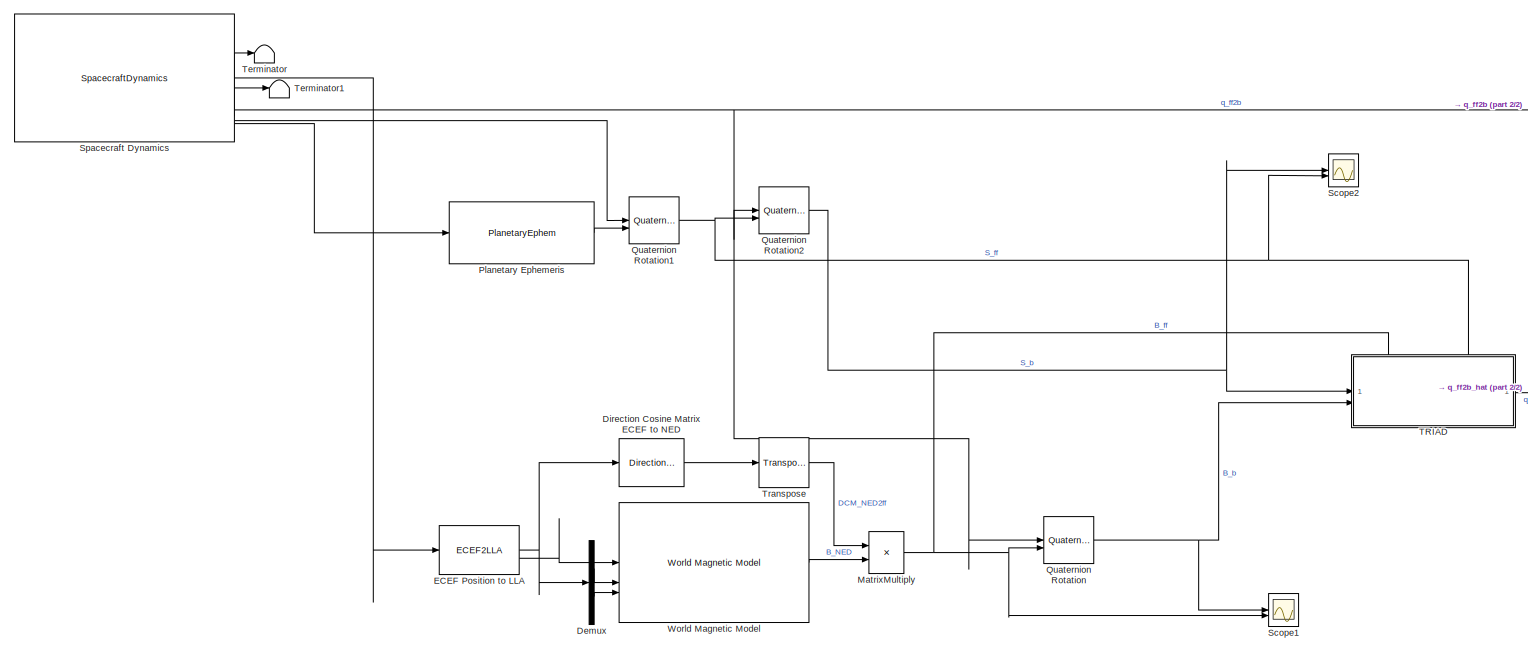
[diagram: root canvas - part 1/2, most of the canvas]
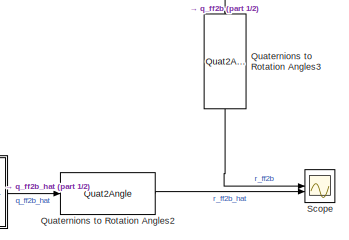
[diagram: root canvas - part 2/2, middle right region]
MODEL slx_978f751714cd
KIND model
CONFIG AbsTol = auto
CONFIG EnableMultiTasking = off
CONFIG FixedStep = auto
CONFIG MaxStep = auto
CONFIG MinStep = auto
CONFIG RelTol = 1e-3
CONFIG SampleTimeConstraint = Unconstrained
CONFIG SolverName = VariableStepAuto
CONFIG StartTime = 0.0
CONFIG StopTime = 90*60
BLOCK [Demux] Demux
  Outputs = 2
BLOCK [Reference] Direction Cosine Matrix ECEF to NED  REF=aerolibtransform2/Direction Cosine Matrix
ECEF to NED
  SourceBlock = aerolibtransform2/Direction Cosine Matrix\nECEF to NED
  SourceType = DCM ECEF to NED
BLOCK [ECEF2LLA] ECEF Position to LLA
BLOCK [Product] MatrixMultiply
  Multiplication = Matrix(*)
BLOCK [PlanetaryEphem] Planetary Ephemeris
  outputVelocity = off
  target = Sun
BLOCK [Reference] Quaternion Rotation  REF=aerolibutil/Quaternion
Rotation
  SourceBlock = aerolibutil/Quaternion\nRotation
  SourceType = Quaternion Rotation
BLOCK [Reference] Quaternion Rotation1  REF=aerolibutil/Quaternion
Rotation
  SourceBlock = aerolibutil/Quaternion\nRotation
  SourceType = Quaternion Rotation
BLOCK [Reference] Quaternion Rotation2  REF=aerolibutil/Quaternion
Rotation
  SourceBlock = aerolibutil/Quaternion\nRotation
  SourceType = Quaternion Rotation
BLOCK [Quat2Angle] Quaternions to Rotation Angles2
  AttributesFormatString = Rotation Order: %<rotationOrder>
  rotationOrder = XYZ
BLOCK [Quat2Angle] Quaternions to Rotation Angles3
  AttributesFormatString = Rotation Order: %<rotationOrder>
  NameLocation = left
  rotationOrder = XYZ
BLOCK [Scope] Scope
  ActiveDisplayYMaximum = 2.3753171663449577
  ActiveDisplayYMinimum = -4.0237003189636624
  Floating = off
  GraphicalSettings = {"Style":{"BackgroundColor":[0.12941176470588237,0.12941176470588237,0.12941176470588237],"AxesColor":[0.07058823529411765,0.07058823529411765,0.07058823529411765],"LabelsColor":[0.8509803921568627,0.8509803921568627,0.8509803921568627],"PreserveColors":false,"Visible":[true,true,true,true,true,true],"LineStyle":["-","-","-","-","-","-"],"LineWidth":[1.5,1.5,1.5,1.5,1.5,1.5],"BarWidth":[0.9,0.9,0....<+2586ch>
  MultipleDisplayCache = [{"MaxYLimMag":3.9042330291469596,"MaxYLimReal":2.3753171663449577,"MinYLimMag":0,"MinYLimReal":-4.0237003189636624,"PlotAsMagnitudePhase":false,"ShowGrid":true,"ShowLegend":true,"Title":"%<SignalLabel>","YLabel":""}]
  NumInputPorts = 2
  ScopeFrameLocation = window
  ShowLegend = on
  WasSavedAsWebScope = on
  WindowPosition = [0.000000,36.000000,1536.000000,793.000000,]
BLOCK [Scope] Scope1
  ActiveDisplayYMaximum = 49109.361957621222
  ActiveDisplayYMinimum = -90706.468158005373
  DataLoggingVariableName = ScopeData1
  Floating = off
  GraphicalSettings = {"Style":{"BackgroundColor":[0.12941176470588237,0.12941176470588237,0.12941176470588237],"AxesColor":[0.07058823529411765,0.07058823529411765,0.07058823529411765],"LabelsColor":[0.8509803921568627,0.8509803921568627,0.8509803921568627],"PreserveColors":false,"Visible":[true,true,true,true,true,true],"LineStyle":["-","-","-","-","-","-"],"LineWidth":[1.5,1.5,1.5,1.5,1.5,1.5],"BarWidth":[0.9,0.9,0....<+2528ch>
  MultipleDisplayCache = [{"MaxYLimMag":46131.815604388838,"MaxYLimReal":49109.361957621222,"MinYLimMag":0,"MinYLimReal":-90706.468158005373,"PlotAsMagnitudePhase":false,"ShowGrid":true,"ShowLegend":true,"Title":"%<SignalLabel>","YLabel":""}]
  NumInputPorts = 2
  ScopeFrameLocation = window
  ShowLegend = on
  WasSavedAsWebScope = on
  WindowPosition = [488.000000,222.000000,560.000000,420.000000,]
BLOCK [Scope] Scope2
  ActiveDisplayYMaximum = 1.7791445102441102E+8
  ActiveDisplayYMinimum = -1.3526055933478013E+8
  DataLoggingVariableName = ScopeData2
  Floating = off
  GraphicalSettings = {"Style":{"BackgroundColor":[0.12941176470588237,0.12941176470588237,0.12941176470588237],"AxesColor":[0.07058823529411765,0.07058823529411765,0.07058823529411765],"LabelsColor":[0.8509803921568627,0.8509803921568627,0.8509803921568627],"PreserveColors":false,"Visible":[true,true,true,true,true,true],"LineStyle":["-","-","-","-","-","-"],"LineWidth":[1.5,1.5,1.5,1.5,1.5,1.5],"BarWidth":[0.9,0.9,0....<+2528ch>
  MultipleDisplayCache = [{"MaxYLimMag":1.7791445102441102E+8,"MaxYLimReal":1.7791445102441102E+8,"MinYLimMag":0,"MinYLimReal":-1.3526055933478013E+8,"PlotAsMagnitudePhase":false,"ShowGrid":true,"ShowLegend":true,"Title":"%<SignalLabel>","YLabel":""}]
  NumInputPorts = 2
  ScopeFrameLocation = window
  ShowLegend = on
  WasSavedAsWebScope = on
  WindowPosition = [0.000000,36.000000,1536.000000,793.000000,]
BLOCK [SpacecraftDynamics] Spacecraft Dynamics
  attitudeFrame = Fixed-frame
  attitudeRate = [1, 0, 0]
  forcesIn = off
  momentsIn = off
  outportFrame = Fixed-frame
  outputTransform = on
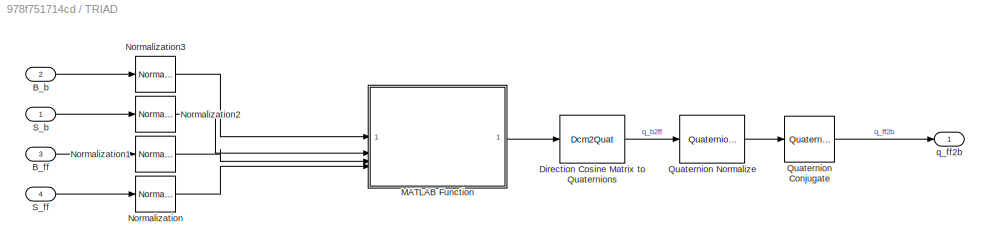
BLOCK [SubSystem] TRIAD
  PortSchema = {"entries":[{"content":{"sides":[{"content":{"connectorIds":["In1","In2"]},"type":"ConnectorPlacement.EquallySpacedRectSide","uuid":"934d396e-f242-4144-8e49-7dca4c529b1e"},{"content":{"connectorIds":["Out1"],"side":"RIGHT"},"type":"ConnectorPlacement.EquallySpacedRectSide","uuid":"d5049cd6-8da5-467a-a595-0659620b3453"},{"content":{"connectorIds":["In3","In4"],"side":"TOP"},"type":"ConnectorPlaceme...<+257ch>
  ShowPortLabels = SignalName
BLOCK [Inport] TRIAD/B_b
  Port = 2
BLOCK [Inport] TRIAD/B_ff
  Port = 3
BLOCK [Dcm2Quat] TRIAD/Direction Cosine Matrix to Quaternions
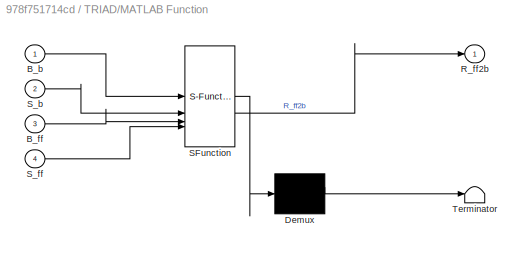
BLOCK [SubSystem] TRIAD/MATLAB Function
  ErrorFcn = Stateflow.Translate.translate
  PermitHierarchicalResolution = ExplicitOnly
  SFBlockType = MATLAB Function
  TreatAsAtomicUnit = on
BLOCK [Demux] TRIAD/MATLAB Function/ Demux 
  Outputs = 1
BLOCK [S-Function] TRIAD/MATLAB Function/ SFunction 
  EnableBusSupport = off
  FunctionName = sf_sfun
  PortCounts = [4 2]
  SFcnIsStateOwnerBlock = off
  SFunctionDeploymentMode = off
  Tag = Stateflow S-Function 2
BLOCK [Terminator] TRIAD/MATLAB Function/ Terminator 
BLOCK [Inport] TRIAD/MATLAB Function/B_b
BLOCK [Inport] TRIAD/MATLAB Function/B_ff
  Port = 3
BLOCK [Outport] TRIAD/MATLAB Function/R_ff2b
BLOCK [Inport] TRIAD/MATLAB Function/S_b
  Port = 2
BLOCK [Inport] TRIAD/MATLAB Function/S_ff
  Port = 4
BLOCK [Reference] TRIAD/Normalization  REF=dspmathops/Normalization
  SourceBlock = dspmathops/Normalization
  SourceType = Normalization
BLOCK [Reference] TRIAD/Normalization1  REF=dspmathops/Normalization
  SourceBlock = dspmathops/Normalization
  SourceType = Normalization
BLOCK [Reference] TRIAD/Normalization2  REF=dspmathops/Normalization
  SourceBlock = dspmathops/Normalization
  SourceType = Normalization
BLOCK [Reference] TRIAD/Normalization3  REF=dspmathops/Normalization
  SourceBlock = dspmathops/Normalization
  SourceType = Normalization
BLOCK [Reference] TRIAD/Quaternion Conjugate  REF=aerolibutil/Quaternion
Conjugate
  SourceBlock = aerolibutil/Quaternion\nConjugate
  SourceType = Quaternion Conjugate
BLOCK [Reference] TRIAD/Quaternion Normalize  REF=sharedutil/Quaternion
Normalize
  LibrarySourceBlock = aerolibutil/Quaternion\nNormalize
  SourceBlock = sharedutil/Quaternion\nNormalize
  SourceType = Quaternion Normalize
BLOCK [Inport] TRIAD/S_b
BLOCK [Inport] TRIAD/S_ff
  Port = 4
BLOCK [Outport] TRIAD/q_ff2b
BLOCK [Terminator] Terminator
BLOCK [Terminator] Terminator1
BLOCK [Reference] Transpose  REF=matrix_library/Transpose
  LibrarySourceBlock = simulink/Matrix\nOperations/Transpose
  SourceBlock = matrix_library/Transpose
  SourceType = Transpose
BLOCK [Reference] World Magnetic Model  REF=aerolibgravity2/World Magnetic Model
  AttributesFormatString = %<model>
  SourceBlock = aerolibgravity2/World Magnetic Model
  SourceType = WorldMagneticModel
LINE Demux:1 -> World Magnetic Model:2
LINE Demux:2 -> World Magnetic Model:3
LINE Direction Cosine Matrix ECEF to NED:1 -> Transpose:1
NET ECEF Position to LLA:1 -> Demux:1, Direction Cosine Matrix ECEF to NED:1
LINE ECEF Position to LLA:2 -> World Magnetic Model:1
NET MatrixMultiply:1 -> Quaternion Rotation:2, Scope1:2, TRIAD:3
LINE Planetary Ephemeris:1 -> Quaternion Rotation1:2
NET Quaternion Rotation1:1 -> Quaternion Rotation2:2, Scope2:2, TRIAD:4
NET Quaternion Rotation2:1 -> Scope2:1, TRIAD:1
NET Quaternion Rotation:1 -> Scope1:1, TRIAD:2
LINE Quaternions to Rotation Angles2:1 -> Scope:2
LINE Quaternions to Rotation Angles3:1 -> Scope:1
LINE Spacecraft Dynamics:1 -> ECEF Position to LLA:1
LINE Spacecraft Dynamics:2 -> Terminator:1
NET Spacecraft Dynamics:3 -> Quaternion Rotation2:1, Quaternion Rotation:1, Quaternions to Rotation Angles3:1
LINE Spacecraft Dynamics:4 -> Terminator1:1
LINE Spacecraft Dynamics:5 -> Quaternion Rotation1:1
LINE Spacecraft Dynamics:6 -> Planetary Ephemeris:1
LINE TRIAD/B_b:1 -> TRIAD/Normalization3:1
LINE TRIAD/B_ff:1 -> TRIAD/Normalization1:1
LINE TRIAD/Direction Cosine Matrix to Quaternions:1 -> TRIAD/Quaternion Normalize:1
LINE TRIAD/MATLAB Function:1 -> TRIAD/Direction Cosine Matrix to Quaternions:1
LINE TRIAD/Normalization1:1 -> TRIAD/MATLAB Function:3
LINE TRIAD/Normalization2:1 -> TRIAD/MATLAB Function:2
LINE TRIAD/Normalization3:1 -> TRIAD/MATLAB Function:1
LINE TRIAD/Normalization:1 -> TRIAD/MATLAB Function:4
LINE TRIAD/Quaternion Conjugate:1 -> TRIAD/q_ff2b:1
LINE TRIAD/Quaternion Normalize:1 -> TRIAD/Quaternion Conjugate:1
LINE TRIAD/S_b:1 -> TRIAD/Normalization2:1
LINE TRIAD/S_ff:1 -> TRIAD/Normalization:1
LINE TRIAD:1 -> Quaternions to Rotation Angles2:1
LINE Transpose:1 -> MatrixMultiply:1
LINE World Magnetic Model:1 -> MatrixMultiply:2
note: NET lines group one-source signal fan-out (src -> all destinations, sorted); 1:1 wires keep LINE
CHART TRIAD/MATLAB Function states=1 transitions=1
  STATE_LABEL 'eML_blk_kernel()'
  STATE_LABEL "SCRIPT:\nfunction R_ff2b = TRIAD1(B_b, S_b, B_ff, S_ff)\n\n\n\n\n\n\nt1_b = S_b;\nt2_b = cross(S_b, B_b)/norm(cross(S_b, B_b));\nt3_b = cross(t1_b, t2_b);\n\nt1_f = S_ff;\nt2_f = cross(S_ff, B_ff)/norm(cross(S_ff, B_ff));\nt3_f = cross(t1_f, t2_f);\n\nR_bt = [t1_b t2_b t3_b];\nR_ft = [t1_f t2_f t3_f];\n\nR_bf = R_bt*R_ft';\n\nR_ff2b = R_bf';"
CHART  states=0 transitions=0
